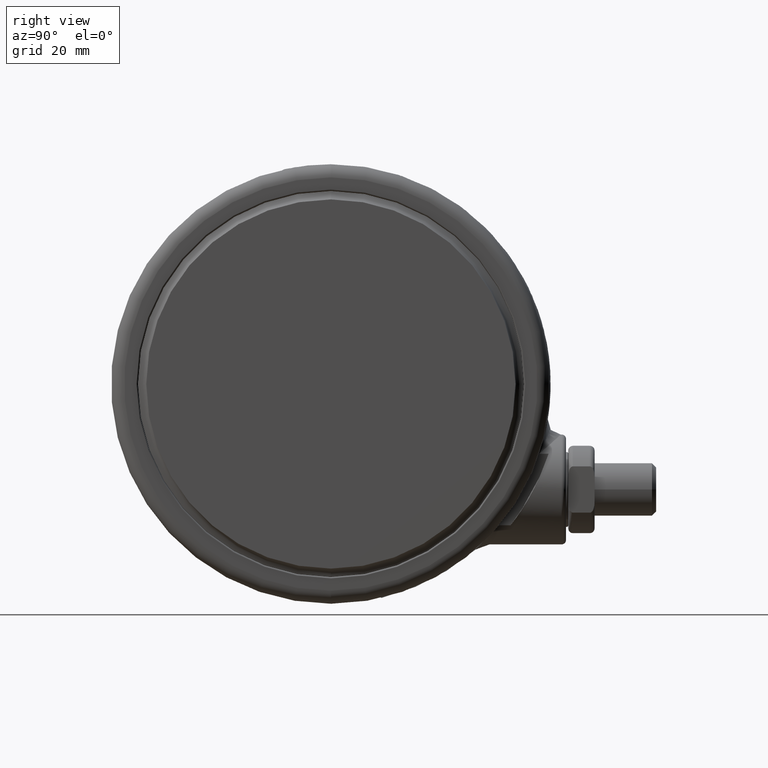
[diagram: clean part render]
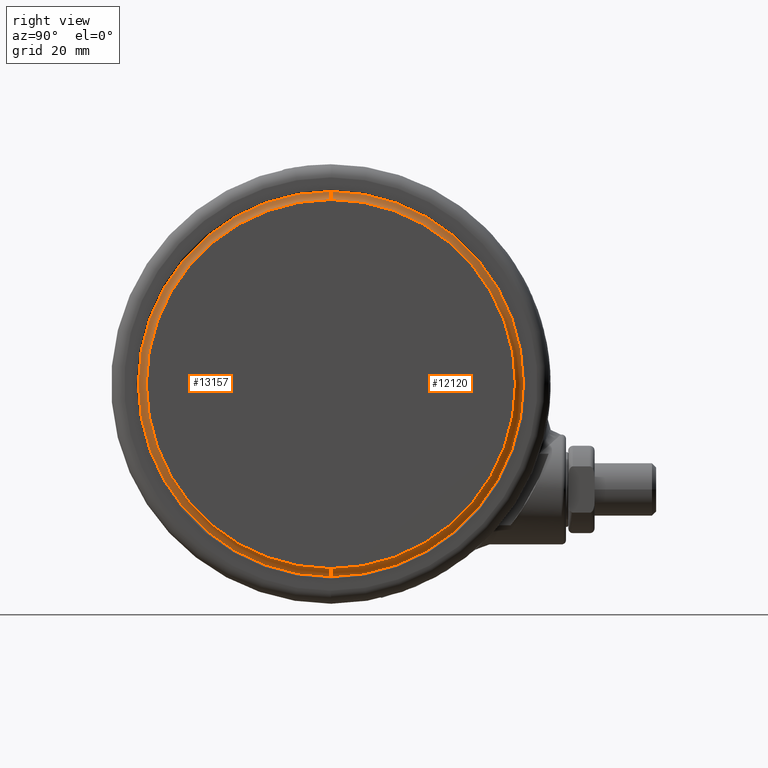
[diagram: same view with one multi-face feature highlighted, each face labeled with its STEP entity id]
A machine part, right view. The highlighted faces form ONE feature: a constant-radius fillet chain: 2 tangent blend faces with common blend radius 2.0507 mm. The faces share edges in the B-rep.
Their STEP definitions:
[1] entity #13157 (Torus):
#1501 = CARTESIAN_POINT ( 'NONE',  ( -41.99926869965538100, 5.143426997956257600E-015, -0.05476190476190365100 ) ) ;
#1941 = DIRECTION ( 'NONE',  ( 1.224646799147353200E-016, 1.000000000000000000, -0.0000000000000000000 ) ) ;
#1979 = CARTESIAN_POINT ( 'NONE',  ( 0.0000000000000000000, 0.0000000000000000000, -0.05476190476190365100 ) ) ;
#3353 = VERTEX_POINT ( 'NONE', #1501 ) ;
#4465 = DIRECTION ( 'NONE',  ( 1.000000000000000000, 0.0000000000000000000, 0.0000000000000000000 ) ) ;
#6919 = DIRECTION ( 'NONE',  ( 0.0000000000000000000, -1.000000000000000000, 0.0000000000000000000 ) ) ;
#9201 = FACE_OUTER_BOUND ( 'NONE', #30115, .T. ) ;
#9576 = DIRECTION ( 'NONE',  ( 0.0000000000000000000, 0.0000000000000000000, 1.000000000000000000 ) ) ;
#10389 = ORIENTED_EDGE ( 'NONE', *, *, #16303, .T. ) ;
#11854 = CARTESIAN_POINT ( 'NONE',  ( 0.0000000000000000000, 0.0000000000000000000, -0.05476190476190339500 ) ) ;
#11973 = EDGE_CURVE ( 'NONE', #18626, #12535, #24571, .T. ) ;
#12535 = VERTEX_POINT ( 'NONE', #24177 ) ;
#13157 = ADVANCED_FACE ( 'NONE', ( #9201 ), #15832, .F. ) ;
#13855 = AXIS2_PLACEMENT_3D ( 'NONE', #1979, #19455, #4465 ) ;
#14904 = CIRCLE ( 'NONE', #13855, 41.99926869965538100 ) ;
#15595 = EDGE_CURVE ( 'NONE', #3353, #18626, #14904, .T. ) ;
#15832 = TOROIDAL_SURFACE ( 'NONE', #24724, 44.04999999999999700, 2.050731300344620100 ) ;
#15960 = AXIS2_PLACEMENT_3D ( 'NONE', #24569, #9576, #27099 ) ;
#16303 = EDGE_CURVE ( 'NONE', #30228, #12535, #23395, .T. ) ;
#16862 = CARTESIAN_POINT ( 'NONE',  ( -44.04999999999999700, 5.394569150244090700E-015, -0.05476190476190339500 ) ) ;
#17811 = AXIS2_PLACEMENT_3D ( 'NONE', #16862, #1941, #19412 ) ;
#18626 = VERTEX_POINT ( 'NONE', #26807 ) ;
#19412 = DIRECTION ( 'NONE',  ( -1.000000000000000000, 1.224646799147356900E-016, 0.0000000000000000000 ) ) ;
#19455 = DIRECTION ( 'NONE',  ( 0.0000000000000000000, 0.0000000000000000000, 1.000000000000000000 ) ) ;
#20527 = ORIENTED_EDGE ( 'NONE', *, *, #15595, .F. ) ;
#21534 = CARTESIAN_POINT ( 'NONE',  ( -43.81162395316311400, 5.365376503968872300E-015, -2.091591727423864900 ) ) ;
#21910 = CARTESIAN_POINT ( 'NONE',  ( 44.04999999999999700, 0.0000000000000000000, -0.05476190476190339500 ) ) ;
#22784 = AXIS2_PLACEMENT_3D ( 'NONE', #21910, #6919, #24431 ) ;
#23395 = CIRCLE ( 'NONE', #15960, 43.81162395321010200 ) ;
#24177 = CARTESIAN_POINT ( 'NONE',  ( 43.81162395316311400, 0.0000000000000000000, -2.091591727423864900 ) ) ;
#24236 = ORIENTED_EDGE ( 'NONE', *, *, #32409, .T. ) ;
#24237 = ORIENTED_EDGE ( 'NONE', *, *, #11973, .F. ) ;
#24431 = DIRECTION ( 'NONE',  ( 0.0000000000000000000, 0.0000000000000000000, -1.000000000000000000 ) ) ;
#24569 = CARTESIAN_POINT ( 'NONE',  ( 0.0000000000000000000, 0.0000000000000000000, -2.091591727423864900 ) ) ;
#24571 = CIRCLE ( 'NONE', #22784, 2.050731300344620100 ) ;
#24724 = AXIS2_PLACEMENT_3D ( 'NONE', #11854, #29372, #31849 ) ;
#25144 = CIRCLE ( 'NONE', #17811, 2.050731300344617500 ) ;
#26807 = CARTESIAN_POINT ( 'NONE',  ( 41.99926869965538100, 0.0000000000000000000, -0.05476190476190365100 ) ) ;
#27099 = DIRECTION ( 'NONE',  ( 1.000000000000000000, 0.0000000000000000000, 0.0000000000000000000 ) ) ;
#29372 = DIRECTION ( 'NONE',  ( 0.0000000000000000000, 0.0000000000000000000, 1.000000000000000000 ) ) ;
#30115 = EDGE_LOOP ( 'NONE', ( #20527, #24236, #10389, #24237 ) ) ;
#30228 = VERTEX_POINT ( 'NONE', #21534 ) ;
#31849 = DIRECTION ( 'NONE',  ( 1.000000000000000000, 0.0000000000000000000, 0.0000000000000000000 ) ) ;
#32409 = EDGE_CURVE ( 'NONE', #3353, #30228, #25144, .T. ) ;
[2] entity #12120 (Torus):
#1136 = ORIENTED_EDGE ( 'NONE', *, *, #32409, .F. ) ;
#1501 = CARTESIAN_POINT ( 'NONE',  ( -41.99926869965538100, 5.143426997956257600E-015, -0.05476190476190365100 ) ) ;
#1941 = DIRECTION ( 'NONE',  ( 1.224646799147353200E-016, 1.000000000000000000, -0.0000000000000000000 ) ) ;
#2099 = CIRCLE ( 'NONE', #17162, 43.81162395321010200 ) ;
#2261 = ORIENTED_EDGE ( 'NONE', *, *, #11973, .T. ) ;
#3353 = VERTEX_POINT ( 'NONE', #1501 ) ;
#3407 = CARTESIAN_POINT ( 'NONE',  ( 0.0000000000000000000, 0.0000000000000000000, -0.05476190476190365100 ) ) ;
#4018 = EDGE_CURVE ( 'NONE', #12535, #30228, #2099, .T. ) ;
#5889 = DIRECTION ( 'NONE',  ( 1.000000000000000000, 0.0000000000000000000, 0.0000000000000000000 ) ) ;
#6919 = DIRECTION ( 'NONE',  ( 0.0000000000000000000, -1.000000000000000000, 0.0000000000000000000 ) ) ;
#7108 = ORIENTED_EDGE ( 'NONE', *, *, #10870, .F. ) ;
#9969 = CARTESIAN_POINT ( 'NONE',  ( 0.0000000000000000000, 0.0000000000000000000, -0.05476190476190339500 ) ) ;
#10870 = EDGE_CURVE ( 'NONE', #18626, #3353, #27322, .T. ) ;
#11701 = DIRECTION ( 'NONE',  ( 0.0000000000000000000, 0.0000000000000000000, 1.000000000000000000 ) ) ;
#11973 = EDGE_CURVE ( 'NONE', #18626, #12535, #24571, .T. ) ;
#12120 = ADVANCED_FACE ( 'NONE', ( #25740 ), #32338, .F. ) ;
#12224 = EDGE_LOOP ( 'NONE', ( #7108, #2261, #28208, #1136 ) ) ;
#12535 = VERTEX_POINT ( 'NONE', #24177 ) ;
#15423 = AXIS2_PLACEMENT_3D ( 'NONE', #9969, #27473, #29979 ) ;
#16862 = CARTESIAN_POINT ( 'NONE',  ( -44.04999999999999700, 5.394569150244090700E-015, -0.05476190476190339500 ) ) ;
#17162 = AXIS2_PLACEMENT_3D ( 'NONE', #26723, #11701, #29209 ) ;
#17811 = AXIS2_PLACEMENT_3D ( 'NONE', #16862, #1941, #19412 ) ;
#18626 = VERTEX_POINT ( 'NONE', #26807 ) ;
#19412 = DIRECTION ( 'NONE',  ( -1.000000000000000000, 1.224646799147356900E-016, 0.0000000000000000000 ) ) ;
#20893 = DIRECTION ( 'NONE',  ( 0.0000000000000000000, 0.0000000000000000000, 1.000000000000000000 ) ) ;
#21534 = CARTESIAN_POINT ( 'NONE',  ( -43.81162395316311400, 5.365376503968872300E-015, -2.091591727423864900 ) ) ;
#21910 = CARTESIAN_POINT ( 'NONE',  ( 44.04999999999999700, 0.0000000000000000000, -0.05476190476190339500 ) ) ;
#22784 = AXIS2_PLACEMENT_3D ( 'NONE', #21910, #6919, #24431 ) ;
#24177 = CARTESIAN_POINT ( 'NONE',  ( 43.81162395316311400, 0.0000000000000000000, -2.091591727423864900 ) ) ;
#24431 = DIRECTION ( 'NONE',  ( 0.0000000000000000000, 0.0000000000000000000, -1.000000000000000000 ) ) ;
#24571 = CIRCLE ( 'NONE', #22784, 2.050731300344620100 ) ;
#25144 = CIRCLE ( 'NONE', #17811, 2.050731300344617500 ) ;
#25302 = AXIS2_PLACEMENT_3D ( 'NONE', #3407, #20893, #5889 ) ;
#25740 = FACE_OUTER_BOUND ( 'NONE', #12224, .T. ) ;
#26723 = CARTESIAN_POINT ( 'NONE',  ( 0.0000000000000000000, 0.0000000000000000000, -2.091591727423864900 ) ) ;
#26807 = CARTESIAN_POINT ( 'NONE',  ( 41.99926869965538100, 0.0000000000000000000, -0.05476190476190365100 ) ) ;
#27322 = CIRCLE ( 'NONE', #25302, 41.99926869965538100 ) ;
#27473 = DIRECTION ( 'NONE',  ( 0.0000000000000000000, 0.0000000000000000000, 1.000000000000000000 ) ) ;
#28208 = ORIENTED_EDGE ( 'NONE', *, *, #4018, .T. ) ;
#29209 = DIRECTION ( 'NONE',  ( 1.000000000000000000, 0.0000000000000000000, 0.0000000000000000000 ) ) ;
#29979 = DIRECTION ( 'NONE',  ( 1.000000000000000000, 0.0000000000000000000, 0.0000000000000000000 ) ) ;
#30228 = VERTEX_POINT ( 'NONE', #21534 ) ;
#32338 = TOROIDAL_SURFACE ( 'NONE', #15423, 44.04999999999999700, 2.050731300344620100 ) ;
#32409 = EDGE_CURVE ( 'NONE', #3353, #30228, #25144, .T. ) ;